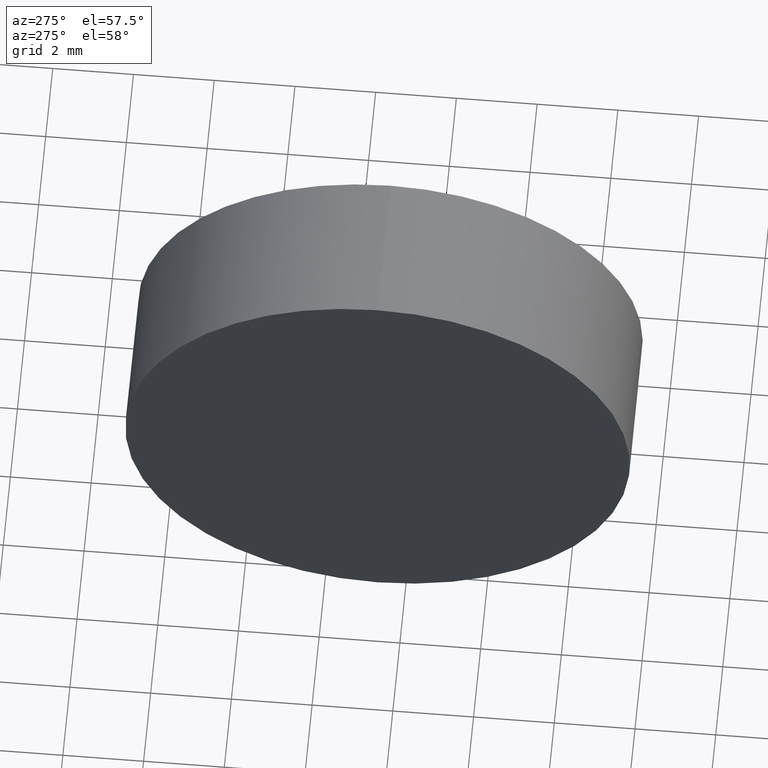
[diagram: clean part render]
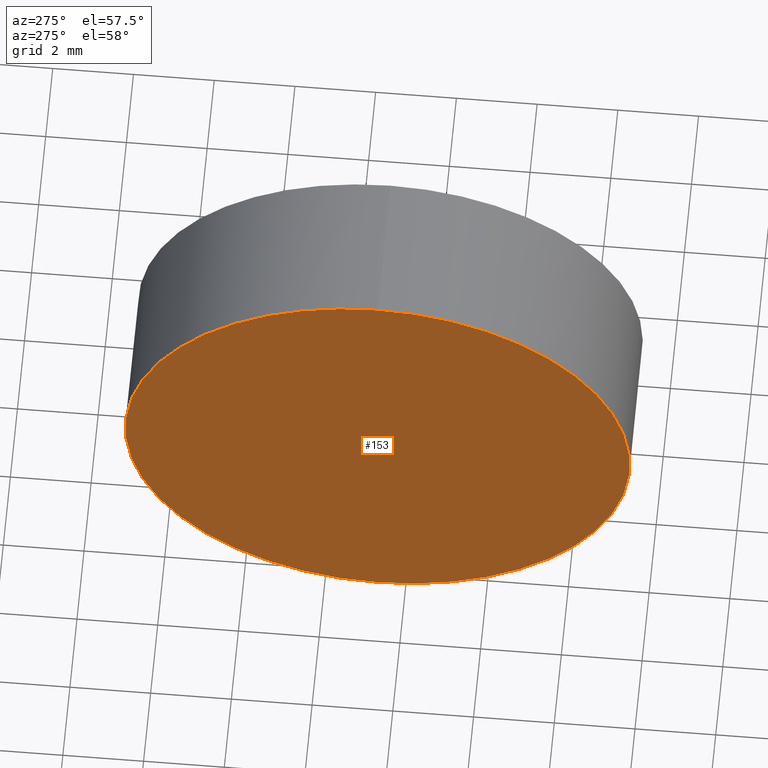
[diagram: same view with one face highlighted and labeled with its STEP entity id]
A machine part, auxiliary view. The second image highlights one B-rep face of the part: STEP entity #153.
In plain terms, the highlighted planar face has unit normal (1, 0, 0).
Its self-contained STEP definition (entity closure, byte-faithful):
#12 = CARTESIAN_POINT ( 'NONE',  ( 57.54632776745975800, 34.68901056168621700, 6.249999999999998200 ) ) ;
#15 = CARTESIAN_POINT ( 'NONE',  ( 57.54632776745975800, 34.68901056168621700, -6.249999999999998200 ) ) ;
#31 = AXIS2_PLACEMENT_3D ( 'NONE', #40, #55, #42 ) ;
#38 = CIRCLE ( 'NONE', #109, 6.249999999999998200 ) ;
#40 = CARTESIAN_POINT ( 'NONE',  ( 57.54632776745975800, 34.68901056168621700, 0.0000000000000000000 ) ) ;
#42 = DIRECTION ( 'NONE',  ( 0.0000000000000000000, 0.0000000000000000000, 1.000000000000000000 ) ) ;
#44 = CARTESIAN_POINT ( 'NONE',  ( 57.54632776745975800, 34.68901056168621700, 0.0000000000000000000 ) ) ;
#45 = CARTESIAN_POINT ( 'NONE',  ( 57.54632776745975800, 34.68901056168621700, 0.0000000000000000000 ) ) ;
#55 = DIRECTION ( 'NONE',  ( -1.000000000000000000, -0.0000000000000000000, -0.0000000000000000000 ) ) ;
#57 = DIRECTION ( 'NONE',  ( 0.0000000000000000000, 0.0000000000000000000, -1.000000000000000000 ) ) ;
#68 = ORIENTED_EDGE ( 'NONE', *, *, #122, .T. ) ;
#88 = AXIS2_PLACEMENT_3D ( 'NONE', #44, #138, #57 ) ;
#93 = DIRECTION ( 'NONE',  ( -1.000000000000000000, -0.0000000000000000000, -0.0000000000000000000 ) ) ;
#104 = DIRECTION ( 'NONE',  ( 0.0000000000000000000, 0.0000000000000000000, 1.000000000000000000 ) ) ;
#107 = ORIENTED_EDGE ( 'NONE', *, *, #180, .T. ) ;
#108 = CIRCLE ( 'NONE', #31, 6.249999999999998200 ) ;
#109 = AXIS2_PLACEMENT_3D ( 'NONE', #45, #93, #104 ) ;
#110 = FACE_OUTER_BOUND ( 'NONE', #182, .T. ) ;
#122 = EDGE_CURVE ( 'NONE', #161, #178, #108, .T. ) ;
#138 = DIRECTION ( 'NONE',  ( 1.000000000000000000, 0.0000000000000000000, 0.0000000000000000000 ) ) ;
#153 = ADVANCED_FACE ( 'NONE', ( #110 ), #175, .F. ) ;
#161 = VERTEX_POINT ( 'NONE', #12 ) ;
#175 = PLANE ( 'NONE',  #88 ) ;
#178 = VERTEX_POINT ( 'NONE', #15 ) ;
#180 = EDGE_CURVE ( 'NONE', #178, #161, #38, .T. ) ;
#182 = EDGE_LOOP ( 'NONE', ( #68, #107 ) ) ;